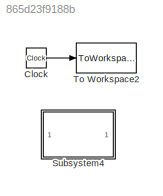
MODEL slx_865d23f9188b
KIND model
CONFIG AbsTol = auto
CONFIG FixedStep = auto
CONFIG MaxStep = auto
CONFIG MinStep = auto
CONFIG RelTol = 1e-3
CONFIG SampleTimeConstraint = Unconstrained
CONFIG Solver = VariableStepAuto
CONFIG SolverMode = Auto
CONFIG SolverName = VariableStepAuto
CONFIG StartTime = 0.0
CONFIG StopTime = 20
BLOCK [Clock] Clock
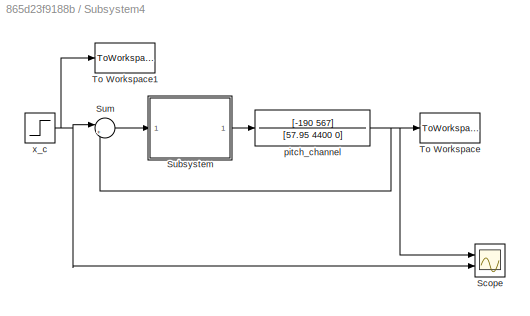
BLOCK [SubSystem] Subsystem4
  Ports = []
  RequestExecContextInheritance = off
  Variant = off
BLOCK [Scope] Subsystem4/Scope
  NumInputPorts = 2
  Ports = [2]
  ScopeSpecificationString = Simulink.scopes.TimeScopeBlockCfg('CurrentConfiguration', extmgr.ConfigurationSet(extmgr.Configuration('Core','General UI',true),extmgr.Configuration('Core','Source UI',true),extmgr.Configuration('Sources','WiredSimulink',true),extmgr.Configuration('Visuals','Time Domain',true,'SerializedDisplays',{struct('MinYLimReal','-0.81908','MaxYLimReal','1.2106','YLabelReal','','MinYLimMag','0.00000','MaxYL...<+1379ch>
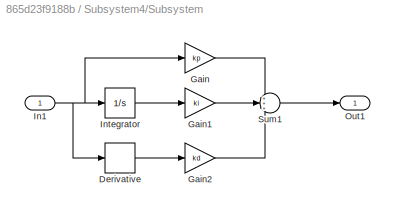
BLOCK [SubSystem] Subsystem4/Subsystem
  Ports = [1, 1]
  RequestExecContextInheritance = off
  Variant = off
BLOCK [Derivative] Subsystem4/Subsystem/Derivative
BLOCK [Gain] Subsystem4/Subsystem/Gain
  Gain = kp
  OutDataTypeStr = Inherit: Inherit via internal rule
  ParamDataTypeStr = Inherit: Inherit via internal rule
  SaturateOnIntegerOverflow = off
BLOCK [Gain] Subsystem4/Subsystem/Gain1
  Gain = ki
  OutDataTypeStr = Inherit: Inherit via internal rule
  ParamDataTypeStr = Inherit: Inherit via internal rule
  SaturateOnIntegerOverflow = off
BLOCK [Gain] Subsystem4/Subsystem/Gain2
  Gain = kd
  OutDataTypeStr = Inherit: Inherit via internal rule
  ParamDataTypeStr = Inherit: Inherit via internal rule
  SaturateOnIntegerOverflow = off
BLOCK [Inport] Subsystem4/Subsystem/In1
  IconDisplay = Port number
BLOCK [Integrator] Subsystem4/Subsystem/Integrator
  Ports = [1, 1]
BLOCK [Outport] Subsystem4/Subsystem/Out1
  IconDisplay = Port number
BLOCK [Sum] Subsystem4/Subsystem/Sum1
  IconShape = round
  InputSameDT = off
  Inputs = +++
  OutDataTypeStr = Inherit: Inherit via internal rule
  Ports = [3, 1]
  SaturateOnIntegerOverflow = off
BLOCK [Sum] Subsystem4/Sum
  IconShape = round
  InputSameDT = off
  Inputs = |+-
  OutDataTypeStr = Inherit: Inherit via internal rule
  Ports = [2, 1]
  SaturateOnIntegerOverflow = off
BLOCK [ToWorkspace] Subsystem4/To Workspace
  FixptAsFi = on
  MaxDataPoints = inf
  Ports = [1]
  SampleTime = -1
  Save2DSignal = 3-D array (concatenate along third dimension)
  VariableName = x
BLOCK [ToWorkspace] Subsystem4/To Workspace1
  FixptAsFi = on
  MaxDataPoints = inf
  Ports = [1]
  SampleTime = -1
  Save2DSignal = 3-D array (concatenate along third dimension)
  VariableName = x_c
BLOCK [TransferFcn] Subsystem4/pitch_channel
  Denominator = [57.95 4400 0]
  Numerator = [-190 567]
BLOCK [Step] Subsystem4/x_c
  SampleTime = 0
  Time = 0
BLOCK [ToWorkspace] To Workspace2
  FixptAsFi = on
  MaxDataPoints = inf
  Ports = [1]
  SampleTime = -1
  Save2DSignal = 3-D array (concatenate along third dimension)
  VariableName = t
LINE Clock:1 -> To Workspace2:1
LINE Subsystem4/Subsystem/Derivative:1 -> Subsystem4/Subsystem/Gain2:1
LINE Subsystem4/Subsystem/Gain1:1 -> Subsystem4/Subsystem/Sum1:2
LINE Subsystem4/Subsystem/Gain2:1 -> Subsystem4/Subsystem/Sum1:3
LINE Subsystem4/Subsystem/Gain:1 -> Subsystem4/Subsystem/Sum1:1
NET Subsystem4/Subsystem/In1:1 -> Subsystem4/Subsystem/Derivative:1, Subsystem4/Subsystem/Gain:1, Subsystem4/Subsystem/Integrator:1
LINE Subsystem4/Subsystem/Integrator:1 -> Subsystem4/Subsystem/Gain1:1
LINE Subsystem4/Subsystem/Sum1:1 -> Subsystem4/Subsystem/Out1:1
LINE Subsystem4/Subsystem:1 -> Subsystem4/pitch_channel:1
LINE Subsystem4/Sum:1 -> Subsystem4/Subsystem:1
NET Subsystem4/pitch_channel:1 -> Subsystem4/Scope:1, Subsystem4/Sum:2, Subsystem4/To Workspace:1
NET Subsystem4/x_c:1 -> Subsystem4/Scope:2, Subsystem4/Sum:1, Subsystem4/To Workspace1:1
note: NET lines group one-source signal fan-out (src -> all destinations, sorted); 1:1 wires keep LINE
